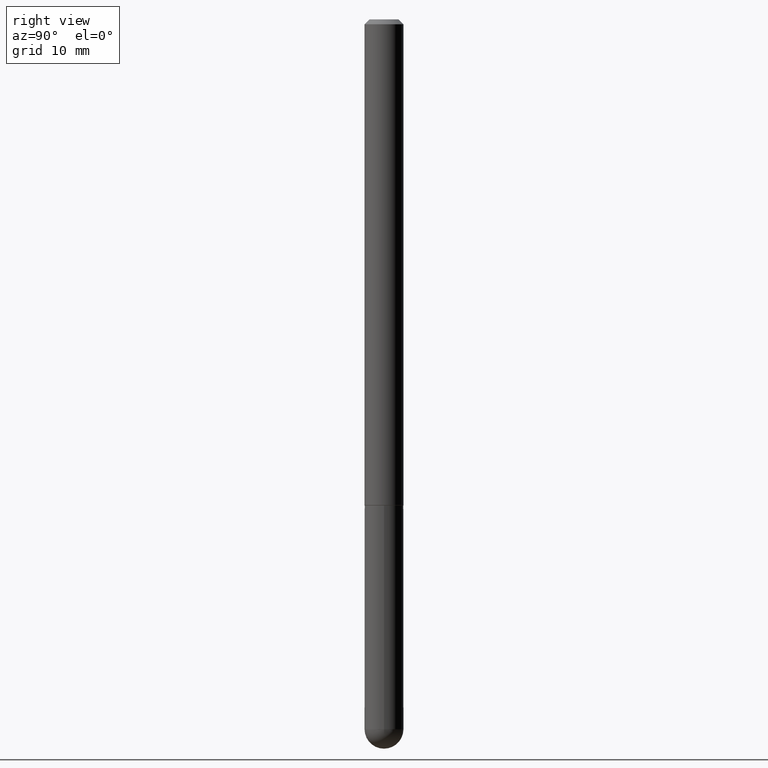
[diagram: clean part render]
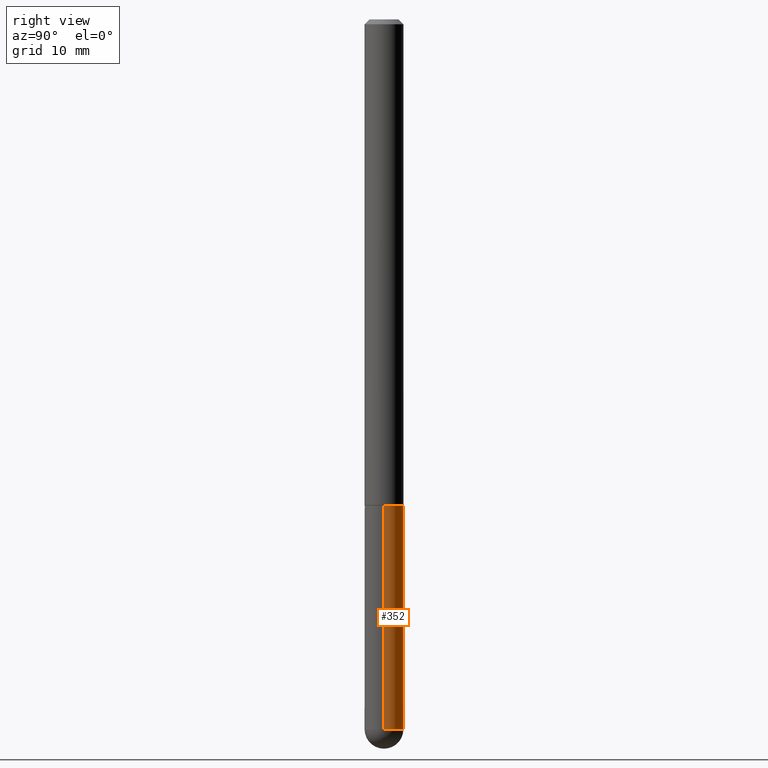
[diagram: same view with one face highlighted and labeled with its STEP entity id]
A machine part, right view. The second image highlights one B-rep face of the part: STEP entity #352.
In plain terms, the highlighted cylindrical surface (edge-blend (fillet) strip) has radius 2.0002 mm, axis along (-0, 0, 1).
Its self-contained STEP definition (entity closure, byte-faithful):
#9 = LINE ( 'NONE', #191, #344 ) ;
#18 = DIRECTION ( 'NONE',  ( 1.000000000000000000, -6.982962677686261977E-15, 0.000000000000000000 ) ) ;
#28 = AXIS2_PLACEMENT_3D ( 'NONE', #186, #214, #166 ) ;
#35 = CARTESIAN_POINT ( 'NONE',  ( 4.813905344975440714E-29, -6.872981015512730918E-15, -1.968499999999999694 ) ) ;
#38 = EDGE_CURVE ( 'NONE', #410, #118, #215, .T. ) ;
#39 = DIRECTION ( 'NONE',  ( -2.445468806185136877E-29, 3.491481338843145188E-15, 1.000000000000000000 ) ) ;
#40 = VECTOR ( 'NONE', #39, 39.37007874015748143 ) ;
#47 = AXIS2_PLACEMENT_3D ( 'NONE', #386, #96, #385 ) ;
#54 = CARTESIAN_POINT ( 'NONE',  ( 5.499083108678623710E-16, 0.07874999999998978650, -2.874050000000000438 ) ) ;
#72 = LINE ( 'NONE', #390, #40 ) ;
#94 = EDGE_LOOP ( 'NONE', ( #138, #117, #269, #180, #348 ) ) ;
#96 = DIRECTION ( 'NONE',  ( -2.445468806185136597E-29, 3.491481338843145583E-15, 1.000000000000000000 ) ) ;
#104 = AXIS2_PLACEMENT_3D ( 'NONE', #195, #358, #318 ) ;
#117 = ORIENTED_EDGE ( 'NONE', *, *, #363, .T. ) ;
#118 = VERTEX_POINT ( 'NONE', #381 ) ;
#132 = DIRECTION ( 'NONE',  ( -2.445468806185136597E-29, 3.491481338843145583E-15, 1.000000000000000000 ) ) ;
#134 = DIRECTION ( 'NONE',  ( -2.445468806185136877E-29, 3.491481338843145188E-15, 1.000000000000000000 ) ) ;
#137 = VERTEX_POINT ( 'NONE', #54 ) ;
#138 = ORIENTED_EDGE ( 'NONE', *, *, #405, .T. ) ;
#150 = CIRCLE ( 'NONE', #104, 0.07874999999999997280 ) ;
#166 = DIRECTION ( 'NONE',  ( 1.000000000000000000, -6.982962677686267499E-15, 4.876176775795935793E-29 ) ) ;
#180 = ORIENTED_EDGE ( 'NONE', *, *, #311, .F. ) ;
#186 = CARTESIAN_POINT ( 'NONE',  ( 0.000000000000000000, 0.000000000000000000, 0.000000000000000000 ) ) ;
#191 = CARTESIAN_POINT ( 'NONE',  ( -0.07874999999999997280, 5.595524044110787031E-16, -3.873661383575737091E-30 ) ) ;
#195 = CARTESIAN_POINT ( 'NONE',  ( 7.028399622416392066E-29, -1.003469194190214264E-14, -2.874049999999999994 ) ) ;
#214 = DIRECTION ( 'NONE',  ( -2.445468806185136597E-29, 3.491481338843145583E-15, 1.000000000000000000 ) ) ;
#215 = CIRCLE ( 'NONE', #239, 0.07875000000000000056 ) ;
#217 = CYLINDRICAL_SURFACE ( 'NONE', #28, 0.07874999999999997280 ) ;
#219 = CARTESIAN_POINT ( 'NONE',  ( 0.07875000000000000056, -7.422889326380523475E-15, -1.968499999999999694 ) ) ;
#225 = VERTEX_POINT ( 'NONE', #342 ) ;
#233 = CARTESIAN_POINT ( 'NONE',  ( -0.07874999999999997280, -7.894284074296357585E-15, -2.874049999999999994 ) ) ;
#239 = AXIS2_PLACEMENT_3D ( 'NONE', #35, #132, #18 ) ;
#262 = VERTEX_POINT ( 'NONE', #233 ) ;
#269 = ORIENTED_EDGE ( 'NONE', *, *, #38, .F. ) ;
#311 = EDGE_CURVE ( 'NONE', #225, #410, #72, .T. ) ;
#318 = DIRECTION ( 'NONE',  ( 1.000000000000000000, -6.982962677686264344E-15, 0.000000000000000000 ) ) ;
#342 = CARTESIAN_POINT ( 'NONE',  ( 0.07874999999999997280, -9.003744789575230521E-15, -2.874049999999999994 ) ) ;
#344 = VECTOR ( 'NONE', #134, 39.37007874015748143 ) ;
#345 = CIRCLE ( 'NONE', #47, 0.07874999999999997280 ) ;
#346 = EDGE_CURVE ( 'NONE', #225, #137, #345, .T. ) ;
#347 = FACE_OUTER_BOUND ( 'NONE', #94, .T. ) ;
#348 = ORIENTED_EDGE ( 'NONE', *, *, #346, .T. ) ;
#352 = ADVANCED_FACE ( 'NONE', ( #347 ), #217, .T. ) ;
#358 = DIRECTION ( 'NONE',  ( -2.445468806185136597E-29, 3.491481338843145583E-15, 1.000000000000000000 ) ) ;
#363 = EDGE_CURVE ( 'NONE', #262, #118, #9, .T. ) ;
#381 = CARTESIAN_POINT ( 'NONE',  ( -0.07875000000000000056, -7.894284074296357585E-15, -1.968499999999999694 ) ) ;
#385 = DIRECTION ( 'NONE',  ( 1.000000000000000000, -6.982962677686264344E-15, 0.000000000000000000 ) ) ;
#386 = CARTESIAN_POINT ( 'NONE',  ( 7.028399622416392066E-29, -1.003469194190214264E-14, -2.874049999999999994 ) ) ;
#390 = CARTESIAN_POINT ( 'NONE',  ( 0.07874999999999997280, -5.499083108677933457E-16, 3.839989210939298316E-30 ) ) ;
#405 = EDGE_CURVE ( 'NONE', #137, #262, #150, .T. ) ;
#410 = VERTEX_POINT ( 'NONE', #219 ) ;